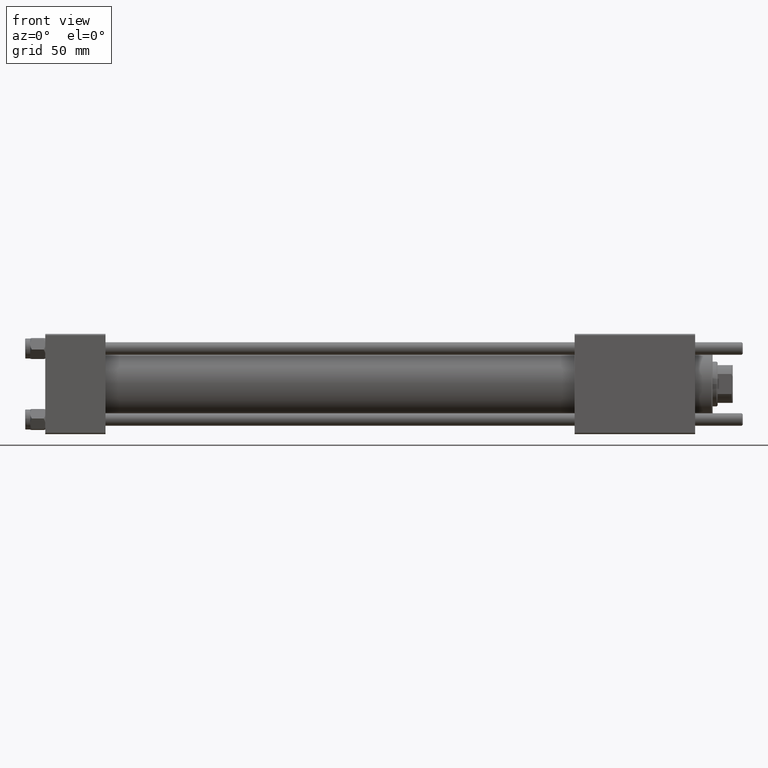
[diagram: clean part render]
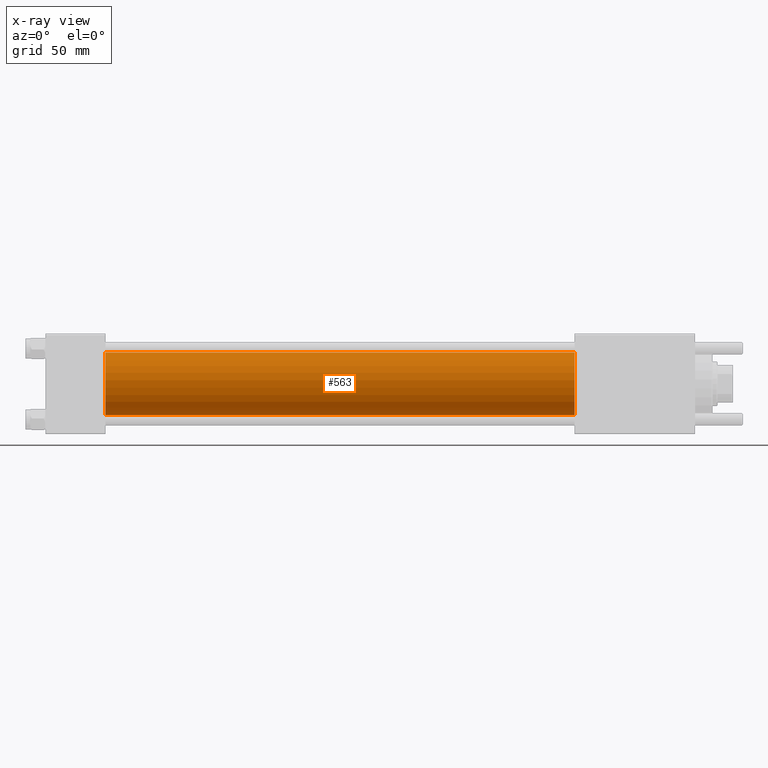
[diagram: x-ray — body ghosted, one internal face saturated and labeled with its STEP entity id]
A machine part, front view, then the same camera in x-ray: the body is ghosted and one INTERNAL B-rep face — a face not visible from any outside direction — is saturated and labeled: STEP entity #563.
In plain terms, the highlighted cylindrical surface (edge-blend (fillet) strip) has radius 12.5 mm, axis along (-1, -0, -0).
Its self-contained STEP definition (entity closure, byte-faithful):
#563 = ADVANCED_FACE ( 'NONE', ( #56489 ), #34707, .F. ) ;
#1337 = VERTEX_POINT ( 'NONE', #27946 ) ;
#6413 = DIRECTION ( 'NONE',  ( -1.000000000000000000, -0.000000000000000000, -0.000000000000000000 ) ) ;
#7711 = VECTOR ( 'NONE', #6413, 1000.000000000000000 ) ;
#10047 = CARTESIAN_POINT ( 'NONE',  ( 24.00000000000000000, -1.071276715031019515E-15, -12.49999999999999645 ) ) ;
#10252 = CIRCLE ( 'NONE', #17575, 12.49999999999999645 ) ;
#10538 = ORIENTED_EDGE ( 'NONE', *, *, #13072, .F. ) ;
#11828 = CARTESIAN_POINT ( 'NONE',  ( 24.00000000000000000, -2.602085213965210642E-15, 12.49999999999999645 ) ) ;
#11966 = VERTEX_POINT ( 'NONE', #10047 ) ;
#12816 = EDGE_LOOP ( 'NONE', ( #34904, #25976, #10538, #46024 ) ) ;
#13072 = EDGE_CURVE ( 'NONE', #55843, #11966, #10252, .T. ) ;
#13198 = DIRECTION ( 'NONE',  ( 1.000000000000000000, 0.000000000000000000, 0.000000000000000000 ) ) ;
#13729 = CARTESIAN_POINT ( 'NONE',  ( 211.0000000000000000, -2.602085213965210642E-15, 12.49999999999999645 ) ) ;
#14992 = EDGE_CURVE ( 'NONE', #21354, #1337, #34083, .T. ) ;
#17575 = AXIS2_PLACEMENT_3D ( 'NONE', #26767, #22736, #48550 ) ;
#19061 = AXIS2_PLACEMENT_3D ( 'NONE', #31247, #39278, #35820 ) ;
#19877 = VECTOR ( 'NONE', #20064, 1000.000000000000000 ) ;
#20064 = DIRECTION ( 'NONE',  ( -1.000000000000000000, -0.000000000000000000, -0.000000000000000000 ) ) ;
#21354 = VERTEX_POINT ( 'NONE', #13729 ) ;
#22736 = DIRECTION ( 'NONE',  ( 1.000000000000000000, 0.000000000000000000, 0.000000000000000000 ) ) ;
#24094 = EDGE_CURVE ( 'NONE', #21354, #55843, #49979, .T. ) ;
#25976 = ORIENTED_EDGE ( 'NONE', *, *, #55533, .T. ) ;
#26767 = CARTESIAN_POINT ( 'NONE',  ( 24.00000000000000000, -2.602085213965210642E-15, 0.000000000000000000 ) ) ;
#27946 = CARTESIAN_POINT ( 'NONE',  ( 211.0000000000000000, -1.071276715031019515E-15, -12.49999999999999645 ) ) ;
#31247 = CARTESIAN_POINT ( 'NONE',  ( 211.0000000000000000, -2.602085213965210642E-15, 0.000000000000000000 ) ) ;
#32116 = LINE ( 'NONE', #49601, #19877 ) ;
#34083 = CIRCLE ( 'NONE', #44163, 12.49999999999999645 ) ;
#34707 = CYLINDRICAL_SURFACE ( 'NONE', #19061, 12.49999999999999645 ) ;
#34904 = ORIENTED_EDGE ( 'NONE', *, *, #14992, .T. ) ;
#35820 = DIRECTION ( 'NONE',  ( 0.000000000000000000, 0.000000000000000000, 1.000000000000000000 ) ) ;
#39278 = DIRECTION ( 'NONE',  ( -1.000000000000000000, -0.000000000000000000, -0.000000000000000000 ) ) ;
#43574 = DIRECTION ( 'NONE',  ( 0.000000000000000000, 0.000000000000000000, -1.000000000000000000 ) ) ;
#44163 = AXIS2_PLACEMENT_3D ( 'NONE', #47867, #13198, #43574 ) ;
#45679 = CARTESIAN_POINT ( 'NONE',  ( 211.0000000000000000, -2.602085213965210642E-15, 12.49999999999999645 ) ) ;
#46024 = ORIENTED_EDGE ( 'NONE', *, *, #24094, .F. ) ;
#47867 = CARTESIAN_POINT ( 'NONE',  ( 211.0000000000000000, -2.602085213965210642E-15, 0.000000000000000000 ) ) ;
#48550 = DIRECTION ( 'NONE',  ( 0.000000000000000000, 0.000000000000000000, -1.000000000000000000 ) ) ;
#49601 = CARTESIAN_POINT ( 'NONE',  ( 211.0000000000000000, -1.071276715031019515E-15, -12.49999999999999645 ) ) ;
#49979 = LINE ( 'NONE', #45679, #7711 ) ;
#55533 = EDGE_CURVE ( 'NONE', #1337, #11966, #32116, .T. ) ;
#55843 = VERTEX_POINT ( 'NONE', #11828 ) ;
#56489 = FACE_OUTER_BOUND ( 'NONE', #12816, .T. ) ;